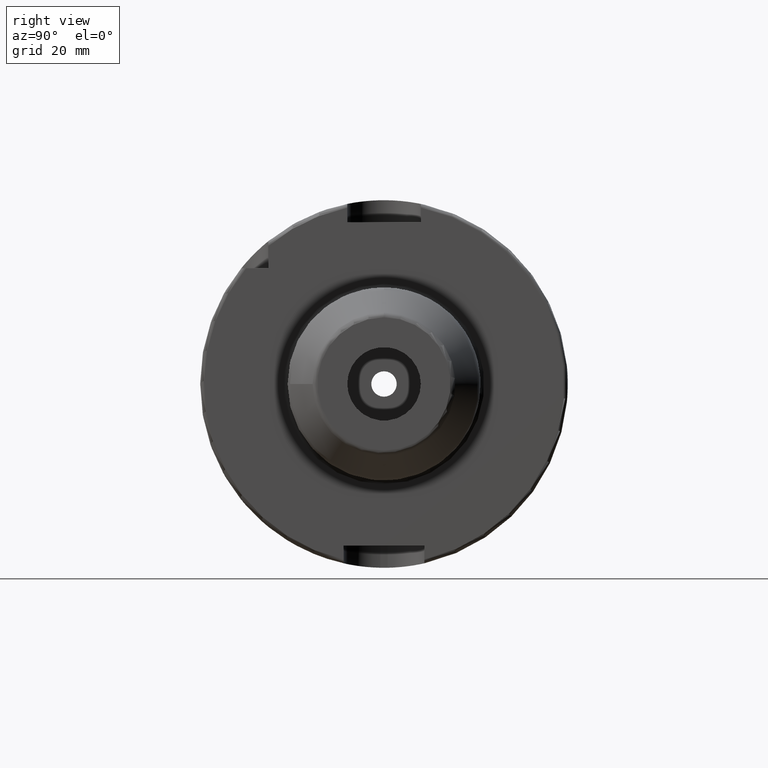
[diagram: clean part render]
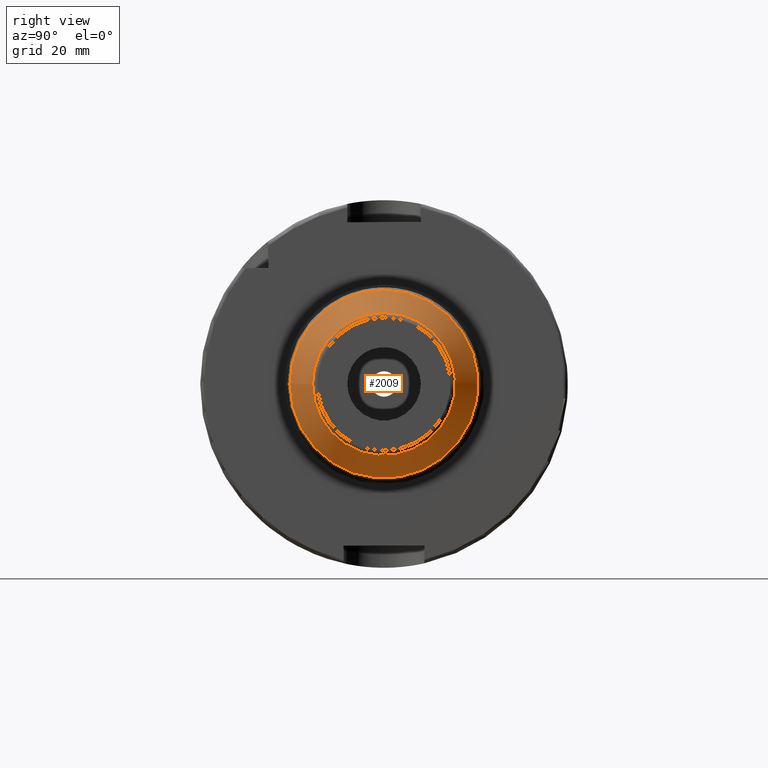
[diagram: same view with one face highlighted and labeled with its STEP entity id]
A machine part, right view. The second image highlights one B-rep face of the part: STEP entity #2009.
In plain terms, the highlighted conical surface has half-angle 30 deg.
Its self-contained STEP definition (entity closure, byte-faithful):
#142=CONICAL_SURFACE('',#2160,22.625,0.523598775598298);
#188=FACE_OUTER_BOUND('',#310,.T.);
#310=EDGE_LOOP('',(#1334,#1335,#1336,#1337,#1338,#1339));
#442=LINE('',#3075,#551);
#551=VECTOR('',#2438,22.625);
#663=CIRCLE('',#2158,19.4330127018922);
#664=CIRCLE('',#2159,19.4330127018922);
#665=CIRCLE('',#2161,25.5801270189222);
#666=CIRCLE('',#2162,25.5801270189222);
#799=VERTEX_POINT('',#3068);
#800=VERTEX_POINT('',#3070);
#801=VERTEX_POINT('',#3074);
#802=VERTEX_POINT('',#3076);
#1008=EDGE_CURVE('',#799,#800,#663,.T.);
#1009=EDGE_CURVE('',#800,#799,#664,.T.);
#1010=EDGE_CURVE('',#800,#801,#442,.T.);
#1011=EDGE_CURVE('',#802,#801,#665,.T.);
#1012=EDGE_CURVE('',#801,#802,#666,.T.);
#1334=ORIENTED_EDGE('',*,*,#1009,.F.);
#1335=ORIENTED_EDGE('',*,*,#1010,.T.);
#1336=ORIENTED_EDGE('',*,*,#1011,.F.);
#1337=ORIENTED_EDGE('',*,*,#1012,.F.);
#1338=ORIENTED_EDGE('',*,*,#1010,.F.);
#1339=ORIENTED_EDGE('',*,*,#1008,.F.);
#2009=ADVANCED_FACE('',(#188),#142,.T.);
#2158=AXIS2_PLACEMENT_3D('',#3071,#2432,#2433);
#2159=AXIS2_PLACEMENT_3D('',#3072,#2434,#2435);
#2160=AXIS2_PLACEMENT_3D('',#3073,#2436,#2437);
#2161=AXIS2_PLACEMENT_3D('',#3077,#2439,#2440);
#2162=AXIS2_PLACEMENT_3D('',#3078,#2441,#2442);
#2432=DIRECTION('center_axis',(1.,0.,0.));
#2433=DIRECTION('ref_axis',(0.,-1.,3.06161699786838E-17));
#2434=DIRECTION('center_axis',(1.,0.,0.));
#2435=DIRECTION('ref_axis',(0.,-1.,3.06161699786838E-17));
#2436=DIRECTION('center_axis',(-1.,0.,0.));
#2437=DIRECTION('ref_axis',(0.,1.,0.));
#2438=DIRECTION('',(-0.866025403784439,-0.5,-6.12323399573676E-17));
#2439=DIRECTION('center_axis',(-1.,0.,0.));
#2440=DIRECTION('ref_axis',(0.,-1.,3.06161699786838E-17));
#2441=DIRECTION('center_axis',(-1.,0.,0.));
#2442=DIRECTION('ref_axis',(0.,-1.,3.06161699786838E-17));
#3068=CARTESIAN_POINT('',(89.25,-2.37985768031622E-15,19.4330127018922));
#3070=CARTESIAN_POINT('',(89.25,-19.4330127018922,-2.37985768031622E-15));
#3071=CARTESIAN_POINT('Origin',(89.25,0.,-2.97482210039527E-15));
#3072=CARTESIAN_POINT('Origin',(89.25,0.,-2.97482210039527E-15));
#3073=CARTESIAN_POINT('Origin',(83.7213158225628,0.,0.));
#3074=CARTESIAN_POINT('',(78.60288568297,-25.5801270189222,-3.13266206755058E-15));
#3075=CARTESIAN_POINT('',(83.7213158225628,-22.625,-2.77076338307089E-15));
#3076=CARTESIAN_POINT('',(78.60288568297,-3.13266206755058E-15,25.5801270189222));
#3077=CARTESIAN_POINT('Origin',(78.60288568297,0.,-3.91582758443822E-15));
#3078=CARTESIAN_POINT('Origin',(78.60288568297,0.,-3.91582758443822E-15));